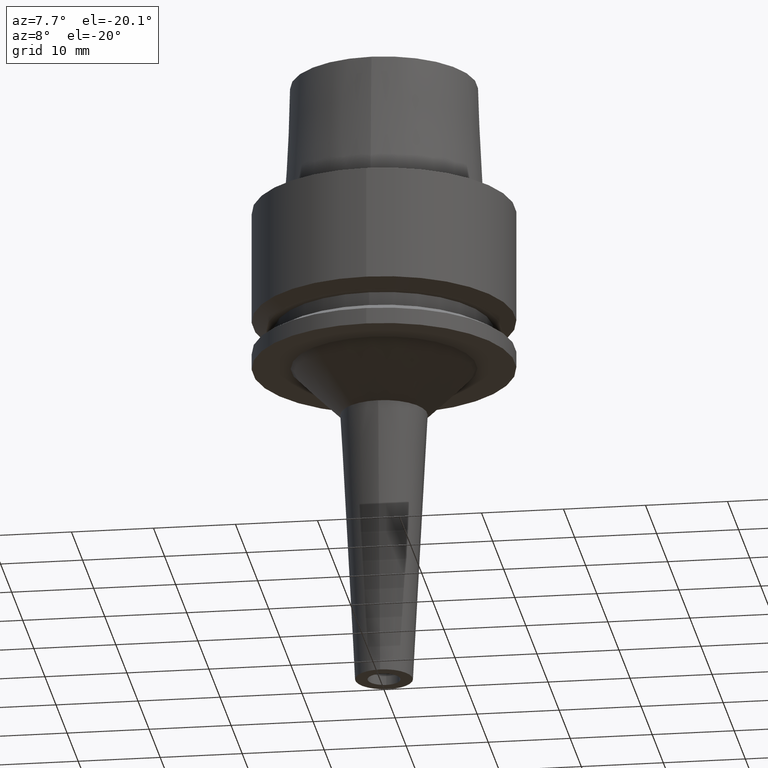
[diagram: clean part render]
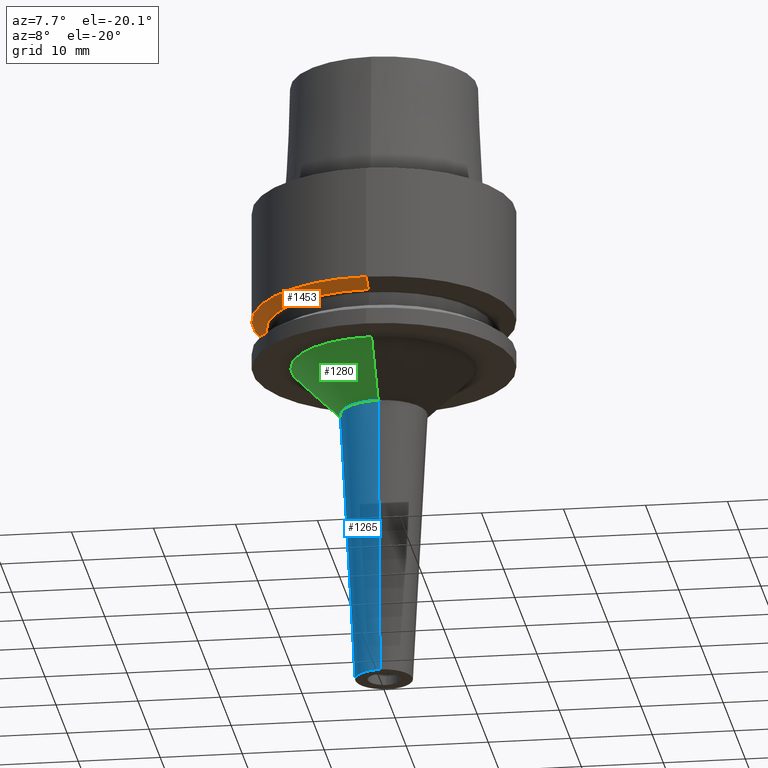
[diagram: same view with three faces highlighted in distinct colors, each labeled with its STEP entity id]
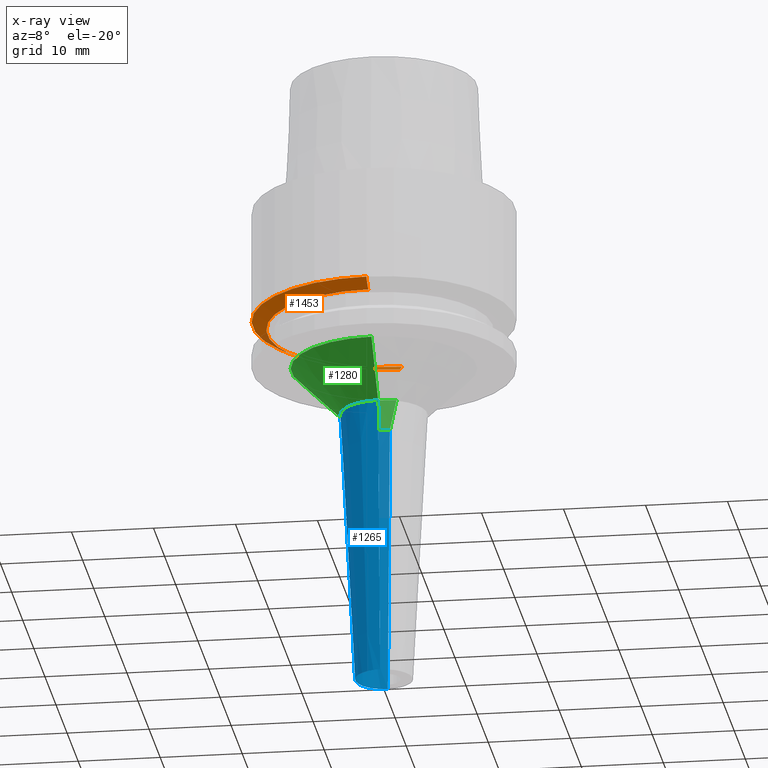
[diagram: x-ray of the same camera — body ghosted, the three highlighted faces saturated]
A machine part, auxiliary view with three faces highlighted in distinct colors.
The next image is the same camera in x-ray (body ghosted, the three faces saturated) — at least one of them is partly hidden behind the body in this view.
Their STEP definitions:

[orange] entity #1453 — the highlighted conical surface has half-angle 60 deg.
#620=CARTESIAN_POINT('',(0.E0,1.047199923065E-14,-1.5E1));
#621=DIRECTION('',(0.E0,0.E0,1.E0));
#622=DIRECTION('',(0.E0,1.E0,0.E0));
#623=AXIS2_PLACEMENT_3D('',#620,#621,#622);
#644=DIRECTION('',(0.E0,-8.660254037848E-1,-4.999999999994E-1));
#645=VECTOR('',#644,2.041451884325E0);
#646=CARTESIAN_POINT('',(0.E0,1.6E1,-1.397927405784E1));
#647=LINE('',#646,#645);
#659=CARTESIAN_POINT('',(0.E0,1.047199923065E-14,-1.397927405784E1));
#660=DIRECTION('',(0.E0,0.E0,1.E0));
#661=DIRECTION('',(0.E0,1.E0,0.E0));
#662=AXIS2_PLACEMENT_3D('',#659,#660,#661);
#667=DIRECTION('',(0.E0,8.660254037848E-1,-4.999999999994E-1));
#668=VECTOR('',#667,2.041451884325E0);
#669=CARTESIAN_POINT('',(0.E0,-1.6E1,-1.397927405784E1));
#670=LINE('',#669,#668);
#820=CARTESIAN_POINT('',(0.E0,-1.423205080757E1,-1.5E1));
#821=CARTESIAN_POINT('',(0.E0,1.423205080757E1,-1.5E1));
#822=VERTEX_POINT('',#820);
#823=VERTEX_POINT('',#821);
#824=CARTESIAN_POINT('',(0.E0,1.6E1,-1.397927405784E1));
#825=VERTEX_POINT('',#824);
#826=CARTESIAN_POINT('',(0.E0,-1.6E1,-1.397927405784E1));
#827=VERTEX_POINT('',#826);
#1441=CARTESIAN_POINT('',(0.E0,1.047199923065E-14,-1.448963702892E1));
#1442=DIRECTION('',(0.E0,0.E0,1.E0));
#1443=DIRECTION('',(0.E0,1.E0,0.E0));
#1444=AXIS2_PLACEMENT_3D('',#1441,#1442,#1443);
#1445=CONICAL_SURFACE('',#1444,1.511602540378E1,6.E1);
#1446=ORIENTED_EDGE('',*,*,#1431,.F.);
#1448=ORIENTED_EDGE('',*,*,#1447,.T.);
#1449=ORIENTED_EDGE('',*,*,#1434,.T.);
#1450=ORIENTED_EDGE('',*,*,#1417,.F.);
#1451=EDGE_LOOP('',(#1446,#1448,#1449,#1450));
#1452=FACE_OUTER_BOUND('',#1451,.F.);
#624=CIRCLE('',#623,1.423205080757E1);
#663=CIRCLE('',#662,1.6E1);
#1417=EDGE_CURVE('',#823,#822,#624,.T.);
#1431=EDGE_CURVE('',#825,#823,#647,.T.);
#1434=EDGE_CURVE('',#827,#822,#670,.T.);
#1447=EDGE_CURVE('',#825,#827,#663,.T.);
#1453=ADVANCED_FACE('',(#1452),#1445,.T.);

[blue] entity #1265 — the highlighted conical surface has half-angle 3 deg.
#422=CARTESIAN_POINT('',(0.E0,0.E0,-6.E1));
#423=DIRECTION('',(0.E0,0.E0,1.E0));
#424=DIRECTION('',(0.E0,1.E0,0.E0));
#425=AXIS2_PLACEMENT_3D('',#422,#423,#424);
#446=DIRECTION('',(0.E0,-5.233595624294E-2,-9.986295347546E-1));
#447=VECTOR('',#446,3.404665976393E1);
#448=CARTESIAN_POINT('',(0.E0,5.281864495623E0,-2.6E1));
#449=LINE('',#448,#447);
#461=DIRECTION('',(0.E0,5.233595624294E-2,-9.986295347546E-1));
#462=VECTOR('',#461,3.404665976393E1);
#463=CARTESIAN_POINT('',(0.E0,-5.281864495623E0,-2.6E1));
#464=LINE('',#463,#462);
#475=CARTESIAN_POINT('',(0.E0,0.E0,-2.6E1));
#476=DIRECTION('',(0.E0,0.E0,-1.E0));
#477=DIRECTION('',(0.E0,-1.E0,0.E0));
#478=AXIS2_PLACEMENT_3D('',#475,#476,#477);
#788=CARTESIAN_POINT('',(0.E0,-3.5E0,-6.E1));
#789=CARTESIAN_POINT('',(0.E0,3.5E0,-6.E1));
#790=VERTEX_POINT('',#788);
#791=VERTEX_POINT('',#789);
#792=CARTESIAN_POINT('',(0.E0,5.281864495623E0,-2.6E1));
#793=VERTEX_POINT('',#792);
#794=CARTESIAN_POINT('',(0.E0,-5.281864495623E0,-2.6E1));
#795=VERTEX_POINT('',#794);
#1253=CARTESIAN_POINT('',(0.E0,0.E0,-4.3E1));
#1254=DIRECTION('',(0.E0,0.E0,1.E0));
#1255=DIRECTION('',(0.E0,1.E0,0.E0));
#1256=AXIS2_PLACEMENT_3D('',#1253,#1254,#1255);
#1257=CONICAL_SURFACE('',#1256,4.390932247812E0,3.E0);
#1258=ORIENTED_EDGE('',*,*,#1243,.F.);
#1260=ORIENTED_EDGE('',*,*,#1259,.F.);
#1261=ORIENTED_EDGE('',*,*,#1246,.T.);
#1262=ORIENTED_EDGE('',*,*,#1229,.F.);
#1263=EDGE_LOOP('',(#1258,#1260,#1261,#1262));
#1264=FACE_OUTER_BOUND('',#1263,.F.);
#426=CIRCLE('',#425,3.5E0);
#479=CIRCLE('',#478,5.281864495623E0);
#1229=EDGE_CURVE('',#791,#790,#426,.T.);
#1243=EDGE_CURVE('',#793,#791,#449,.T.);
#1246=EDGE_CURVE('',#795,#790,#464,.T.);
#1259=EDGE_CURVE('',#795,#793,#479,.T.);
#1265=ADVANCED_FACE('',(#1264),#1257,.T.);

[green] entity #1280 — the highlighted conical surface has half-angle 45 deg.
#468=DIRECTION('',(0.E0,7.071067811865E-1,-7.071067811866E-1));
#469=VECTOR('',#468,8.485281374236E0);
#470=CARTESIAN_POINT('',(0.E0,-1.128186449562E1,-2.E1));
#471=LINE('',#470,#469);
#475=CARTESIAN_POINT('',(0.E0,0.E0,-2.6E1));
#476=DIRECTION('',(0.E0,0.E0,-1.E0));
#477=DIRECTION('',(0.E0,-1.E0,0.E0));
#478=AXIS2_PLACEMENT_3D('',#475,#476,#477);
#483=DIRECTION('',(0.E0,-7.071067811865E-1,-7.071067811866E-1));
#484=VECTOR('',#483,8.485281374236E0);
#485=CARTESIAN_POINT('',(0.E0,1.128186449562E1,-2.E1));
#486=LINE('',#485,#484);
#506=CARTESIAN_POINT('',(0.E0,0.E0,-2.E1));
#507=DIRECTION('',(0.E0,0.E0,-1.E0));
#508=DIRECTION('',(0.E0,-1.E0,0.E0));
#509=AXIS2_PLACEMENT_3D('',#506,#507,#508);
#792=CARTESIAN_POINT('',(0.E0,5.281864495623E0,-2.6E1));
#793=VERTEX_POINT('',#792);
#794=CARTESIAN_POINT('',(0.E0,-5.281864495623E0,-2.6E1));
#795=VERTEX_POINT('',#794);
#796=CARTESIAN_POINT('',(0.E0,1.128186449562E1,-2.E1));
#797=VERTEX_POINT('',#796);
#798=CARTESIAN_POINT('',(0.E0,-1.128186449562E1,-2.E1));
#799=VERTEX_POINT('',#798);
#1266=CARTESIAN_POINT('',(0.E0,0.E0,-2.3E1));
#1267=DIRECTION('',(0.E0,0.E0,1.E0));
#1268=DIRECTION('',(0.E0,1.E0,0.E0));
#1269=AXIS2_PLACEMENT_3D('',#1266,#1267,#1268);
#1270=CONICAL_SURFACE('',#1269,8.281864495622E0,4.5E1);
#1272=ORIENTED_EDGE('',*,*,#1271,.F.);
#1274=ORIENTED_EDGE('',*,*,#1273,.F.);
#1276=ORIENTED_EDGE('',*,*,#1275,.T.);
#1277=ORIENTED_EDGE('',*,*,#1259,.T.);
#1278=EDGE_LOOP('',(#1272,#1274,#1276,#1277));
#1279=FACE_OUTER_BOUND('',#1278,.F.);
#479=CIRCLE('',#478,5.281864495623E0);
#510=CIRCLE('',#509,1.128186449562E1);
#1259=EDGE_CURVE('',#795,#793,#479,.T.);
#1271=EDGE_CURVE('',#797,#793,#486,.T.);
#1273=EDGE_CURVE('',#799,#797,#510,.T.);
#1275=EDGE_CURVE('',#799,#795,#471,.T.);
#1280=ADVANCED_FACE('',(#1279),#1270,.T.);